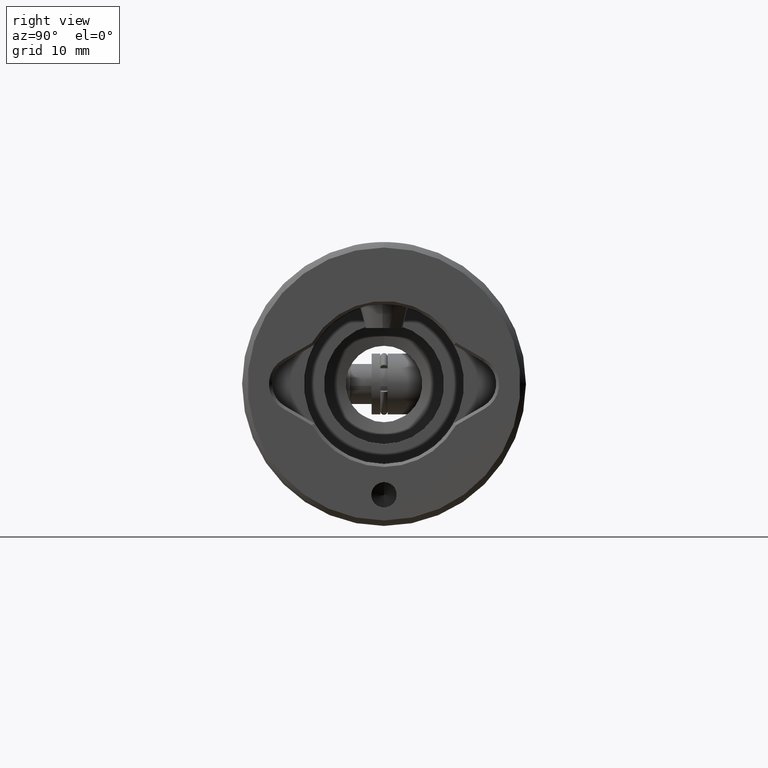
[diagram: clean part render]
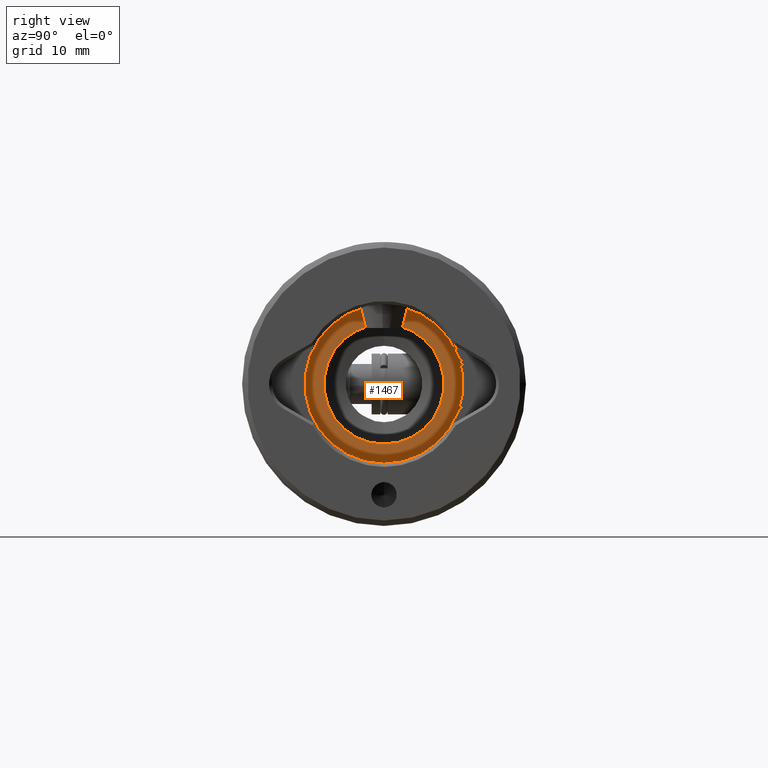
[diagram: same view with one face highlighted and labeled with its STEP entity id]
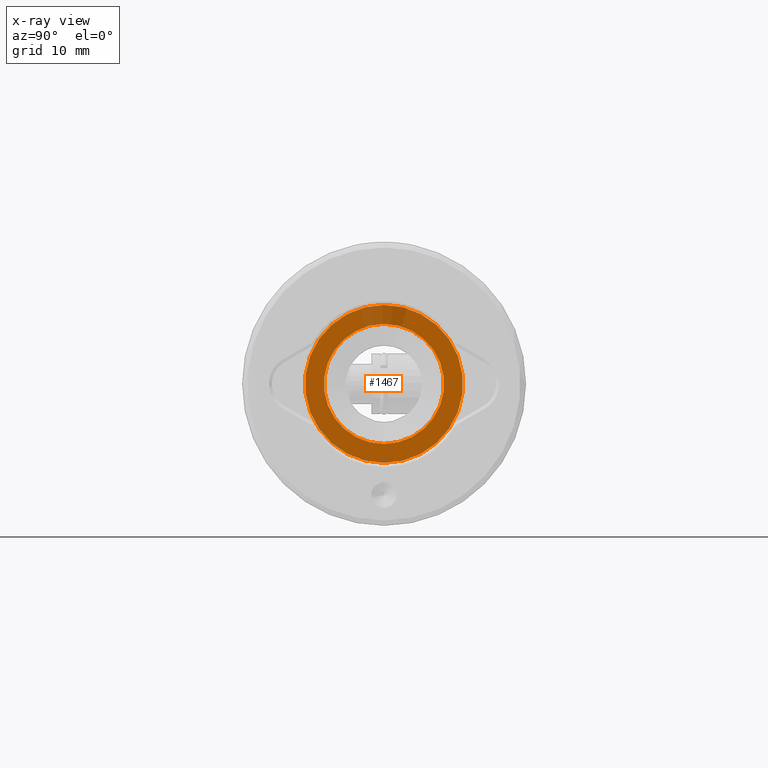
[diagram: x-ray of the same camera — body ghosted, the highlighted face saturated]
A machine part, right view. The second image highlights one B-rep face of the part: STEP entity #1467.
The next image is the same camera in x-ray: the body ghosted, the highlighted face saturated — about 10% of this face is hidden behind the body in this view.
In plain terms, the highlighted planar face has unit normal (1, 0, -0).
Its self-contained STEP definition (entity closure, byte-faithful):
#136 = EDGE_CURVE ( 'NONE', #4114, #3916, #1551, .T. ) ;
#224 = CARTESIAN_POINT ( 'NONE',  ( -8.249999999999989300, 0.0000000000000000000, 29.00000000000000000 ) ) ;
#259 = CARTESIAN_POINT ( 'NONE',  ( 8.249999999999989300, 1.010333609296565200E-015, 29.00000000000000000 ) ) ;
#291 = PLANE ( 'NONE',  #1610 ) ;
#305 = DIRECTION ( 'NONE',  ( -1.000000000000000000, 0.0000000000000000000, 0.0000000000000000000 ) ) ;
#391 = ORIENTED_EDGE ( 'NONE', *, *, #3928, .F. ) ;
#436 = CARTESIAN_POINT ( 'NONE',  ( 0.0000000000000000000, 0.0000000000000000000, 29.00000000000000000 ) ) ;
#478 = VERTEX_POINT ( 'NONE', #259 ) ;
#615 = EDGE_CURVE ( 'NONE', #478, #3006, #4189, .T. ) ;
#812 = DIRECTION ( 'NONE',  ( -1.000000000000000000, 0.0000000000000000000, 0.0000000000000000000 ) ) ;
#945 = CARTESIAN_POINT ( 'NONE',  ( -10.85000000000000100, 0.0000000000000000000, 29.00000000000000000 ) ) ;
#956 = DIRECTION ( 'NONE',  ( 0.0000000000000000000, 0.0000000000000000000, -1.000000000000000000 ) ) ;
#993 = DIRECTION ( 'NONE',  ( -1.000000000000000000, 0.0000000000000000000, 0.0000000000000000000 ) ) ;
#1055 = AXIS2_PLACEMENT_3D ( 'NONE', #436, #2957, #812 ) ;
#1206 = FACE_BOUND ( 'NONE', #4674, .T. ) ;
#1264 = ORIENTED_EDGE ( 'NONE', *, *, #3697, .T. ) ;
#1352 = DIRECTION ( 'NONE',  ( 0.0000000000000000000, 0.0000000000000000000, -1.000000000000000000 ) ) ;
#1358 = FACE_OUTER_BOUND ( 'NONE', #2664, .T. ) ;
#1367 = CARTESIAN_POINT ( 'NONE',  ( 0.0000000000000000000, 0.0000000000000000000, 29.00000000000000000 ) ) ;
#1401 = AXIS2_PLACEMENT_3D ( 'NONE', #1367, #1352, #993 ) ;
#1467 = ADVANCED_FACE ( 'NONE', ( #1358, #1206 ), #291, .T. ) ;
#1551 = CIRCLE ( 'NONE', #1401, 10.85000000000000100 ) ;
#1610 = AXIS2_PLACEMENT_3D ( 'NONE', #3929, #2471, #305 ) ;
#1809 = CARTESIAN_POINT ( 'NONE',  ( 10.85000000000000100, 1.353234713057825500E-015, 29.00000000000000000 ) ) ;
#2471 = DIRECTION ( 'NONE',  ( 0.0000000000000000000, 0.0000000000000000000, -1.000000000000000000 ) ) ;
#2664 = EDGE_LOOP ( 'NONE', ( #1264, #2929 ) ) ;
#2907 = CIRCLE ( 'NONE', #3875, 8.249999999999989300 ) ;
#2929 = ORIENTED_EDGE ( 'NONE', *, *, #136, .T. ) ;
#2957 = DIRECTION ( 'NONE',  ( 0.0000000000000000000, 0.0000000000000000000, -1.000000000000000000 ) ) ;
#3006 = VERTEX_POINT ( 'NONE', #224 ) ;
#3114 = CARTESIAN_POINT ( 'NONE',  ( 0.0000000000000000000, 0.0000000000000000000, 29.00000000000000000 ) ) ;
#3194 = CIRCLE ( 'NONE', #1055, 10.85000000000000100 ) ;
#3473 = DIRECTION ( 'NONE',  ( -1.000000000000000000, 0.0000000000000000000, 0.0000000000000000000 ) ) ;
#3697 = EDGE_CURVE ( 'NONE', #3916, #4114, #3194, .T. ) ;
#3875 = AXIS2_PLACEMENT_3D ( 'NONE', #3114, #956, #3473 ) ;
#3916 = VERTEX_POINT ( 'NONE', #945 ) ;
#3928 = EDGE_CURVE ( 'NONE', #3006, #478, #2907, .T. ) ;
#3929 = CARTESIAN_POINT ( 'NONE',  ( 0.0000000000000000000, 0.0000000000000000000, 29.00000000000000000 ) ) ;
#3961 = DIRECTION ( 'NONE',  ( -1.000000000000000000, 0.0000000000000000000, 0.0000000000000000000 ) ) ;
#3985 = DIRECTION ( 'NONE',  ( 0.0000000000000000000, 0.0000000000000000000, -1.000000000000000000 ) ) ;
#3997 = CARTESIAN_POINT ( 'NONE',  ( 0.0000000000000000000, 0.0000000000000000000, 29.00000000000000000 ) ) ;
#4114 = VERTEX_POINT ( 'NONE', #1809 ) ;
#4149 = ORIENTED_EDGE ( 'NONE', *, *, #615, .F. ) ;
#4189 = CIRCLE ( 'NONE', #4666, 8.249999999999989300 ) ;
#4666 = AXIS2_PLACEMENT_3D ( 'NONE', #3997, #3985, #3961 ) ;
#4674 = EDGE_LOOP ( 'NONE', ( #391, #4149 ) ) ;